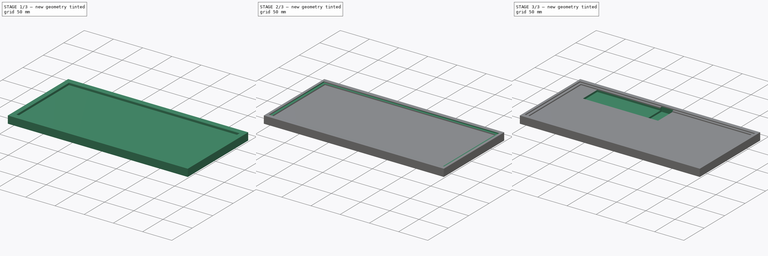
[diagram: build sequence overview — one tinted view per stage of 3, left to right]
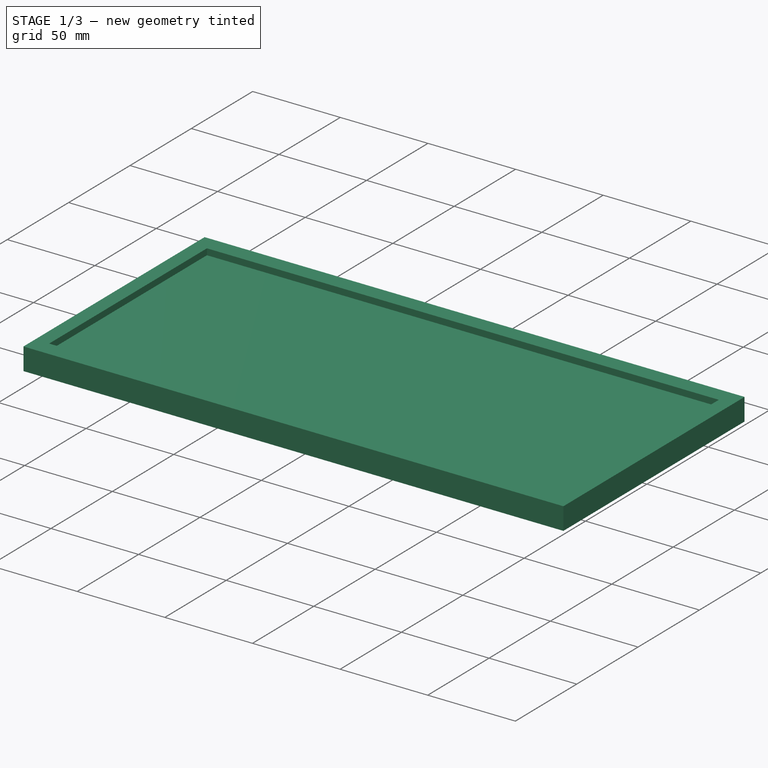
[diagram: stage 1 of 3 — iso view after this stage's code; geometry added in this stage tinted green]
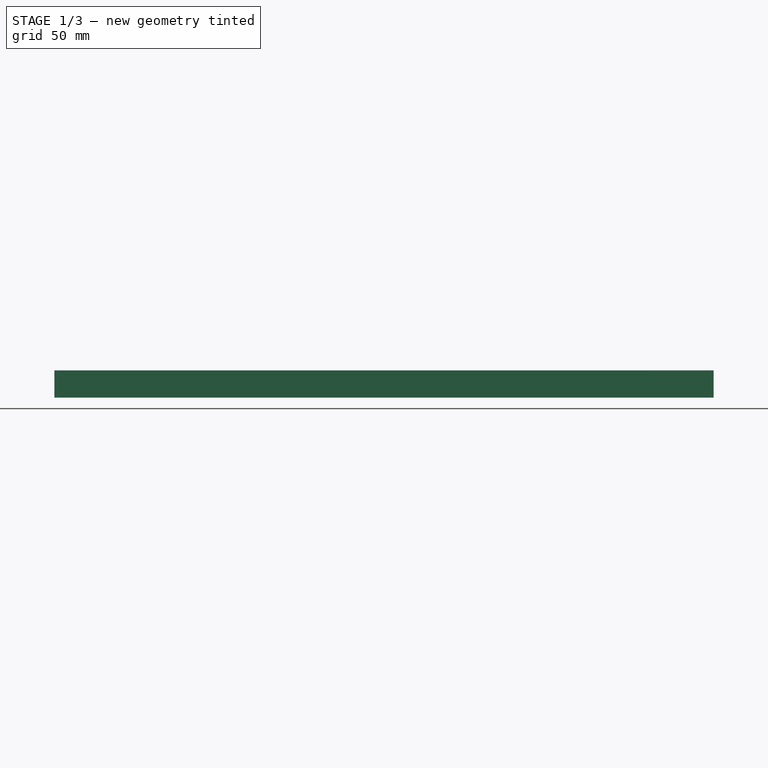
[diagram: stage 1 of 3 — front view after this stage's code; geometry added in this stage tinted green]
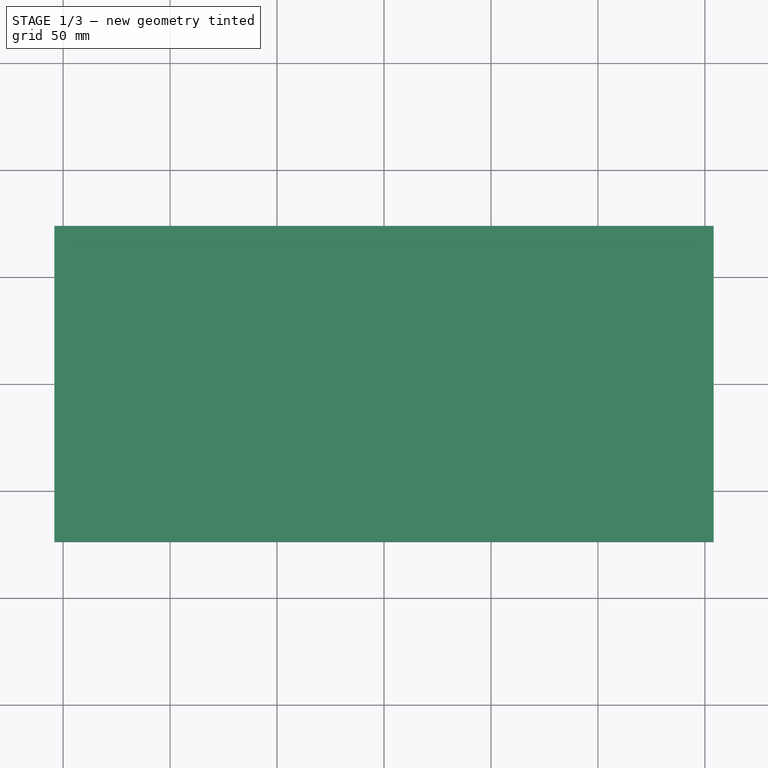
[diagram: stage 1 of 3 — top view after this stage's code; geometry added in this stage tinted green]
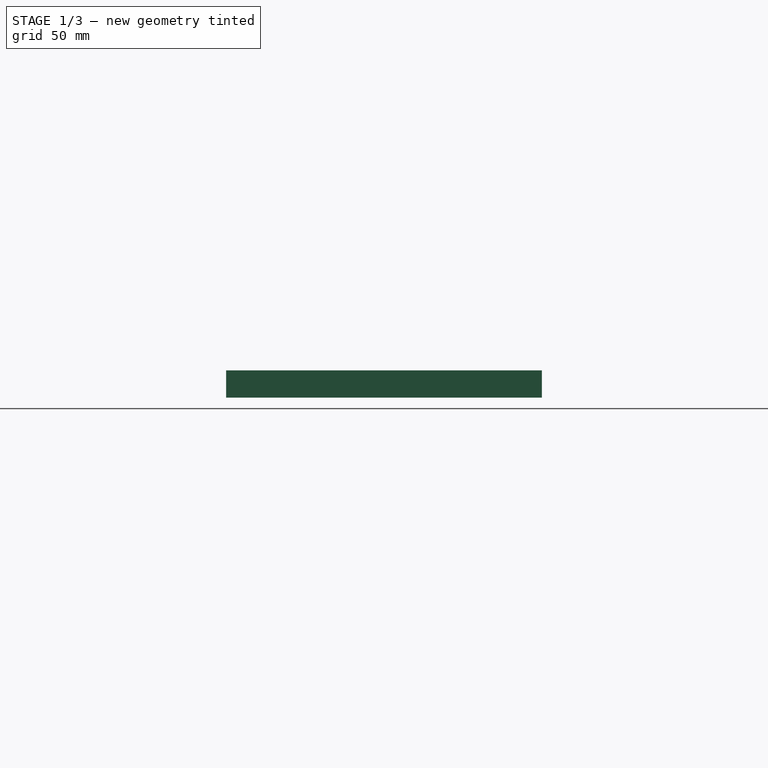
[diagram: stage 1 of 3 — right view after this stage's code; geometry added in this stage tinted green]
FCSTD DOCUMENT  (FreeCAD 0.15R4589 (Git))
Label: case
License: All rights reserved
LicenseURL: http://en.wikipedia.org/wiki/All_rights_reserved
objects: Sketcher::SketchObject×5, PartDesign::Pocket×4, PartDesign::Pad×1
note: 15 computed .brp shape members not serialized (recipe doc carries the construction recipe); baked Part::Feature solids carry a one-line shape summary decoded from their .brp

FEATURE [Sketcher::SketchObject] Sketch001
  sketch-geometry (4):
    g0: LineSegment StartX=-154.051 StartY=73.8187 StartZ=0 EndX=154.051 EndY=73.8187 EndZ=0
    g1: LineSegment StartX=154.051 StartY=73.8187 StartZ=0 EndX=154.051 EndY=-73.8187 EndZ=0
    g2: LineSegment StartX=154.051 StartY=-73.8187 StartZ=0 EndX=-154.051 EndY=-73.8187 EndZ=0
    g3: LineSegment StartX=-154.051 StartY=-73.8187 StartZ=0 EndX=-154.051 EndY=73.8187 EndZ=0
  constraints (12):
    c: Coincident(g0,g1)
    c: Coincident(g1,g2)
    c: Coincident(g2,g3)
    c: Coincident(g3,g0)
    c: Horizontal(g0)
    c: Horizontal(g2)
    c: Vertical(g1)
    c: Vertical(g3)
    c: DistanceX(g0) = 308.102
    c: DistanceX(g-1,g0) = -154.051
    c: DistanceY(g3) = 147.637
    c: DistanceY(g-1,g0) = 73.8187
FEATURE [PartDesign::Pad] Pad
  Length = 12.7
  Length2 = 100
  Sketch = -> Sketch001
  Type = 0
FEATURE [Sketcher::SketchObject] Sketch002  label="interior_pocket"
  Placement = pos=(0,0,12.7) rot=(0,0,1;0rad)
  Support = -> Pad [Face6]
  sketch-geometry (4):
    g0: LineSegment StartX=-146.05 StartY=64.2938 StartZ=0 EndX=146.05 EndY=64.2938 EndZ=0
    g1: LineSegment StartX=146.05 StartY=64.2938 StartZ=0 EndX=146.05 EndY=-64.2938 EndZ=0
    g2: LineSegment StartX=146.05 StartY=-64.2938 StartZ=0 EndX=-146.05 EndY=-64.2938 EndZ=0
    g3: LineSegment StartX=-146.05 StartY=-64.2938 StartZ=0 EndX=-146.05 EndY=64.2938 EndZ=0
  constraints (12):
    c: Coincident(g0,g1)
    c: Coincident(g1,g2)
    c: Coincident(g2,g3)
    c: Coincident(g3,g0)
    c: Horizontal(g0)
    c: Horizontal(g2)
    c: Vertical(g1)
    c: Vertical(g3)
    c: DistanceX(g0) = 292.1
    c: DistanceY(g3) = 128.588
    c: DistanceY(g-1,g0) = 64.2938
    c: DistanceX(g-1,g0) = -146.05
FEATURE [PartDesign::Pocket] Pocket
  Length = 3.556
  Sketch = -> Sketch002
  Type = 0
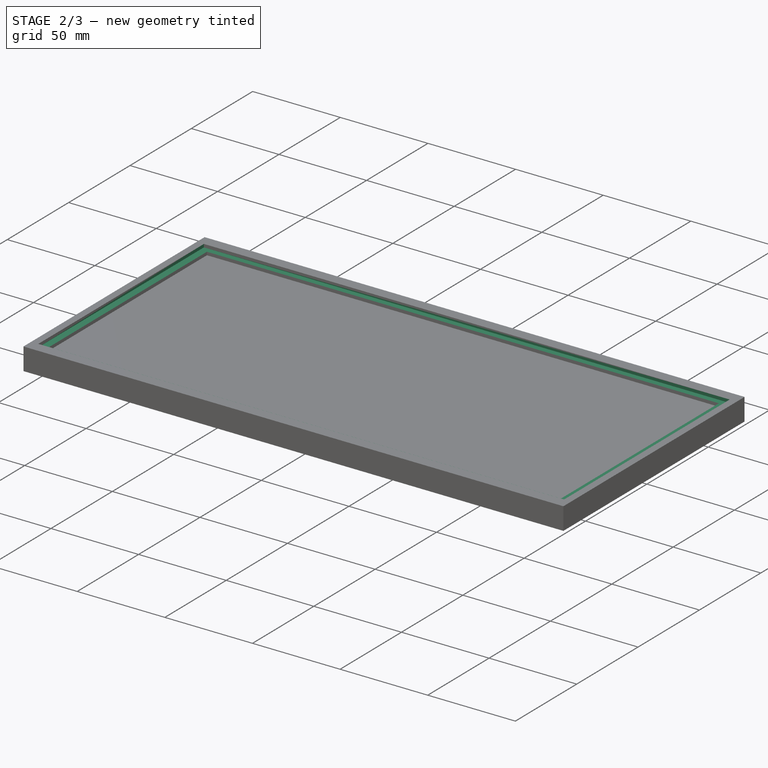
[diagram: stage 2 of 3 — iso view after this stage's code; geometry added in this stage tinted green]
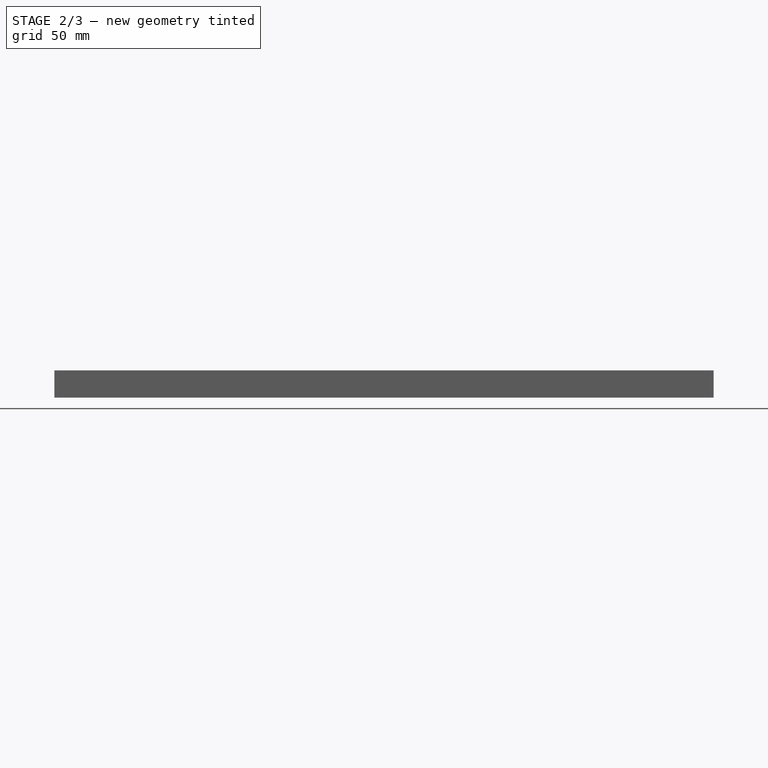
[diagram: stage 2 of 3 — front view after this stage's code; geometry added in this stage tinted green]
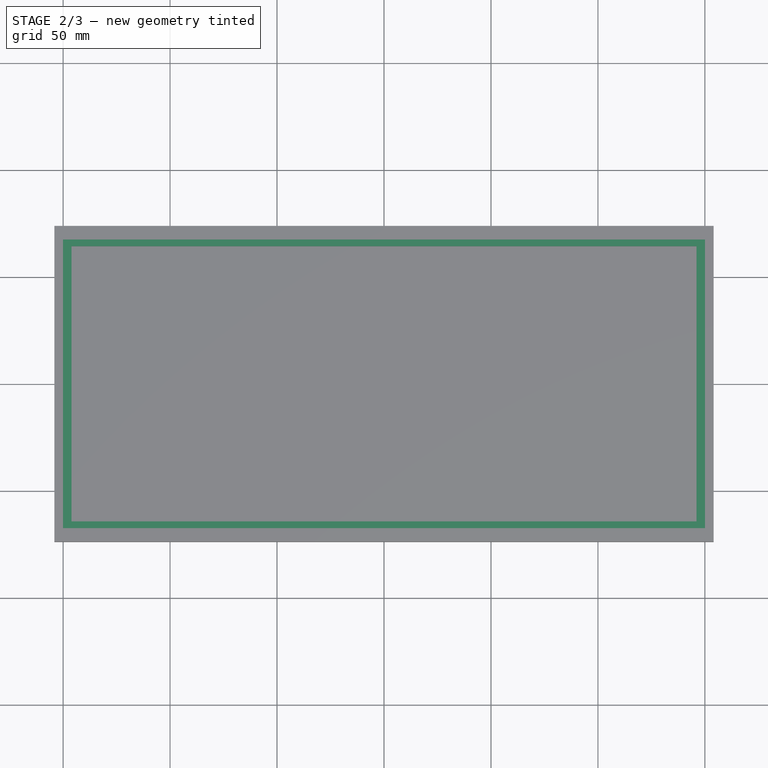
[diagram: stage 2 of 3 — top view after this stage's code; geometry added in this stage tinted green]
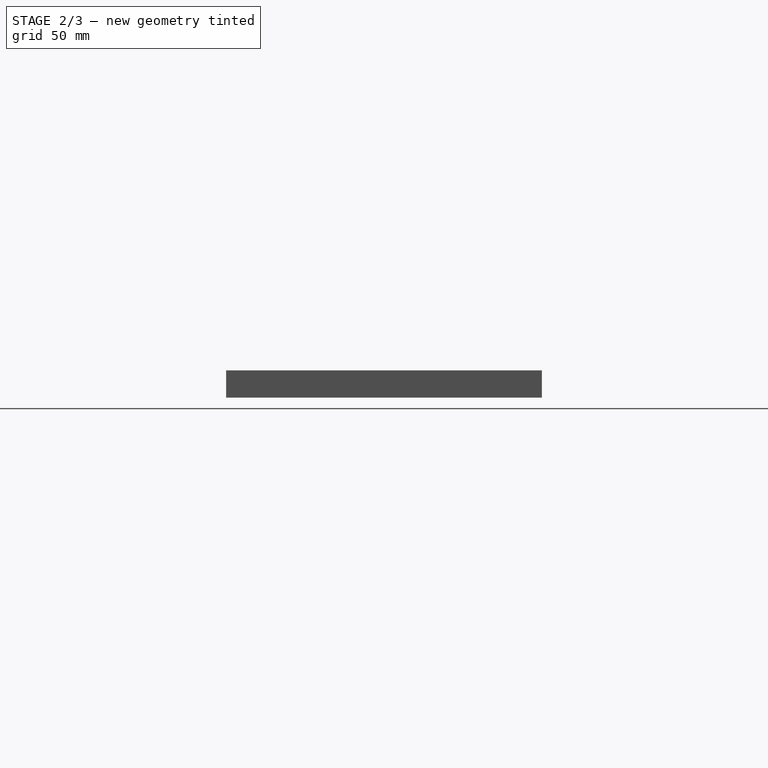
[diagram: stage 2 of 3 — right view after this stage's code; geometry added in this stage tinted green]
FEATURE [Sketcher::SketchObject] Sketch  label="pcb_edge001"
  Placement = pos=(0,0,12.7) rot=(0,0,1;0rad)
  Support = -> Pocket [Face5]
  sketch-geometry (4):
    g0: LineSegment StartX=-150.019 StartY=67.4688 StartZ=0 EndX=150.019 EndY=67.4688 EndZ=0
    g1: LineSegment StartX=150.019 StartY=67.4688 StartZ=0 EndX=150.019 EndY=-67.4688 EndZ=0
    g2: LineSegment StartX=150.019 StartY=-67.4688 StartZ=0 EndX=-150.019 EndY=-67.4688 EndZ=0
    g3: LineSegment StartX=-150.019 StartY=-67.4688 StartZ=0 EndX=-150.019 EndY=67.4688 EndZ=0
  constraints (12):
    c: Coincident(g0,g1)
    c: Coincident(g1,g2)
    c: Coincident(g2,g3)
    c: Coincident(g3,g0)
    c: Horizontal(g0)
    c: Horizontal(g2)
    c: Vertical(g1)
    c: Vertical(g3)
    c: DistanceX(g0) = 300.038
    c: DistanceY(g3) = 134.938
    c: DistanceY(g-1,g0) = 67.4688
    c: DistanceX(g-1,g0) = -150.019
FEATURE [PartDesign::Pocket] Pocket001  label="pcb_edge"
  Length = 1.778
  Sketch = -> Sketch
  Type = 0
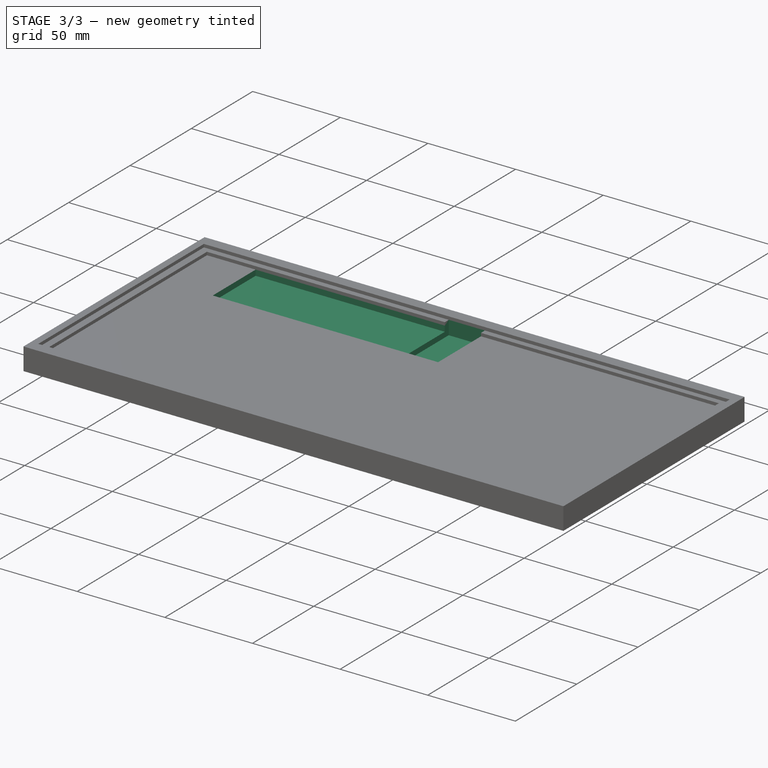
[diagram: stage 3 of 3 — iso view after this stage's code; geometry added in this stage tinted green]
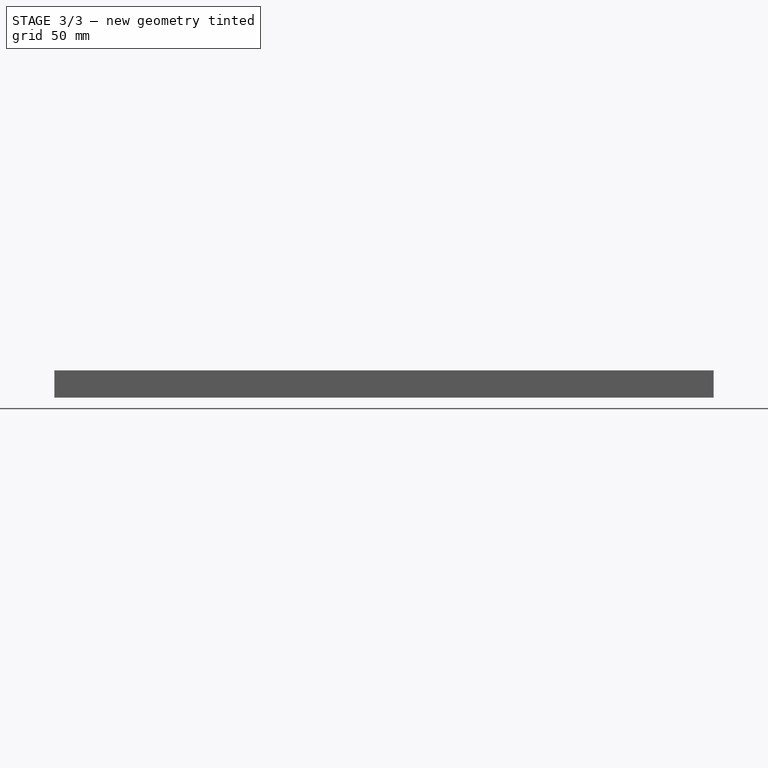
[diagram: stage 3 of 3 — front view after this stage's code; geometry added in this stage tinted green]
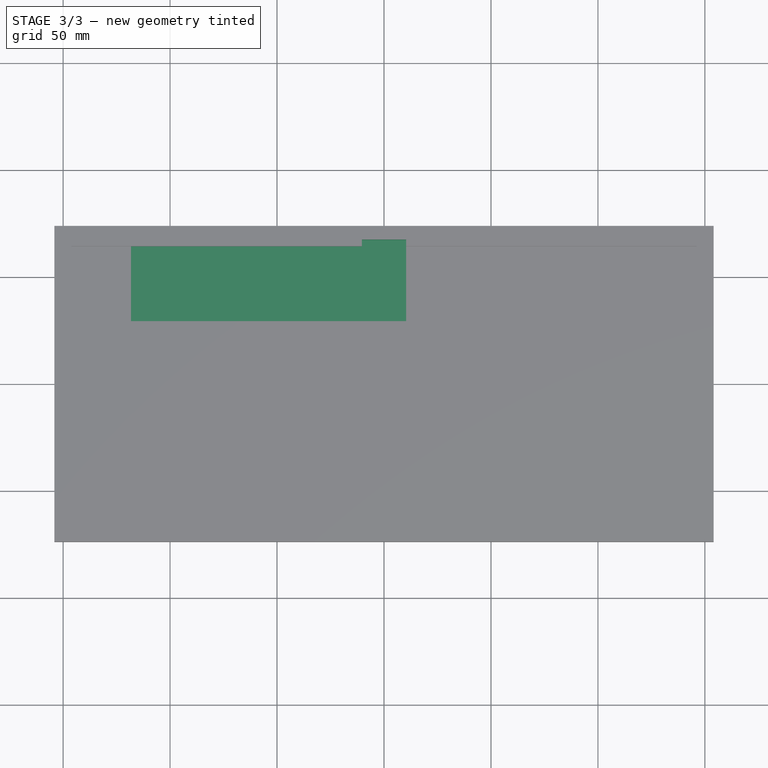
[diagram: stage 3 of 3 — top view after this stage's code; geometry added in this stage tinted green]
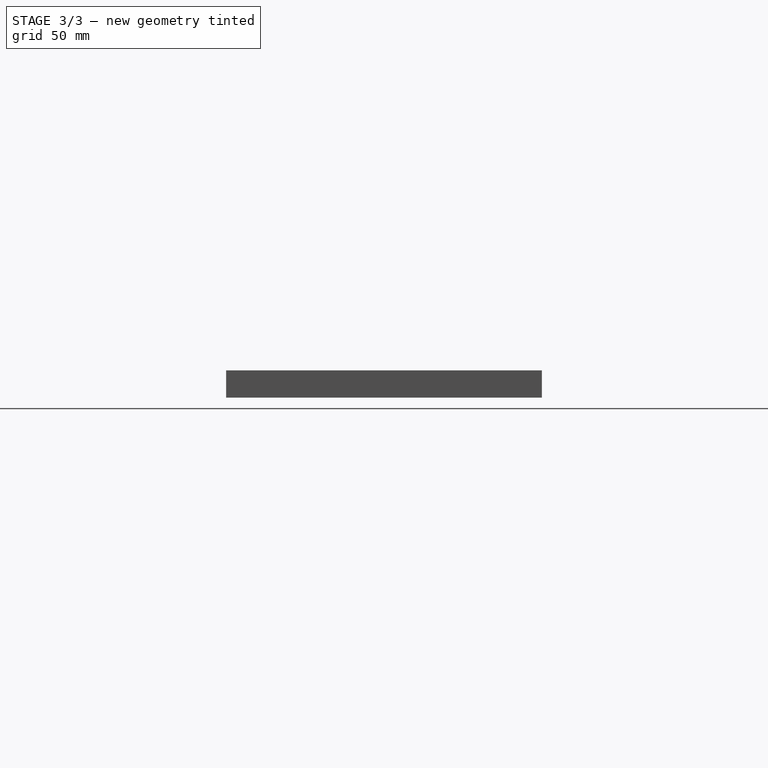
[diagram: stage 3 of 3 — right view after this stage's code; geometry added in this stage tinted green]
FEATURE [Sketcher::SketchObject] Sketch003
  ExternalGeometry = -> [Pocket001]
  Placement = pos=(0,0,10.922) rot=(0,0,1;0rad)
  Support = -> Pocket001 [Face11]
  sketch-geometry (4):
    g0: LineSegment StartX=-10.3187 StartY=67.4688 StartZ=0 EndX=10.3187 EndY=67.4688 EndZ=0
    g1: LineSegment StartX=10.3187 StartY=67.4688 StartZ=0 EndX=10.3187 EndY=29.3687 EndZ=0
    g2: LineSegment StartX=10.3187 StartY=29.3687 StartZ=0 EndX=-10.3187 EndY=29.3687 EndZ=0
    g3: LineSegment StartX=-10.3187 StartY=29.3687 StartZ=0 EndX=-10.3187 EndY=67.4688 EndZ=0
  constraints (12):
    c: Coincident(g0,g1)
    c: Coincident(g1,g2)
    c: Coincident(g2,g3)
    c: Coincident(g3,g0)
    c: Horizontal(g0)
    c: Horizontal(g2)
    c: Vertical(g1)
    c: Vertical(g3)
    c: DistanceX(g2,g-3) = -139.7
    c: DistanceX(g1,g-4) = 139.7
    c: DistanceY(g1) = -38.1
    c: DistanceY(g0,g-5) = 0
FEATURE [PartDesign::Pocket] Pocket002  label="teensy_pocket"
  Length = 7.9375
  Sketch = -> Sketch003
  Type = 0
FEATURE [Sketcher::SketchObject] Sketch004
  ExternalGeometry = -> [Pocket002]
  Placement = pos=(0,0,9.144) rot=(0,0,1;0rad)
  Support = -> Pocket002 [Face21]
  sketch-geometry (4):
    g0: LineSegment StartX=-10.3187 StartY=64.2938 StartZ=0 EndX=-118.269 EndY=64.2938 EndZ=0
    g1: LineSegment StartX=-118.269 StartY=64.2938 StartZ=0 EndX=-118.269 EndY=29.3687 EndZ=0
    g2: LineSegment StartX=-118.269 StartY=29.3687 StartZ=0 EndX=-10.3187 EndY=29.3687 EndZ=0
    g3: LineSegment StartX=-10.3187 StartY=29.3687 StartZ=0 EndX=-10.3187 EndY=64.2938 EndZ=0
  constraints (12):
    c: Coincident(g0,g1)
    c: Coincident(g1,g2)
    c: Coincident(g2,g3)
    c: Coincident(g3,g0)
    c: Horizontal(g0)
    c: Horizontal(g2)
    c: Vertical(g1)
    c: Vertical(g3)
    c: DistanceX(g2,g-3) = 0
    c: DistanceY(g2,g-3) = 0
    c: DistanceY(g0,g-3) = 0
    c: DistanceX(g2) = 107.95
FEATURE [PartDesign::Pocket] Pocket003  label="cable_pocket"
  Length = 3.175
  Sketch = -> Sketch004
  Type = 0
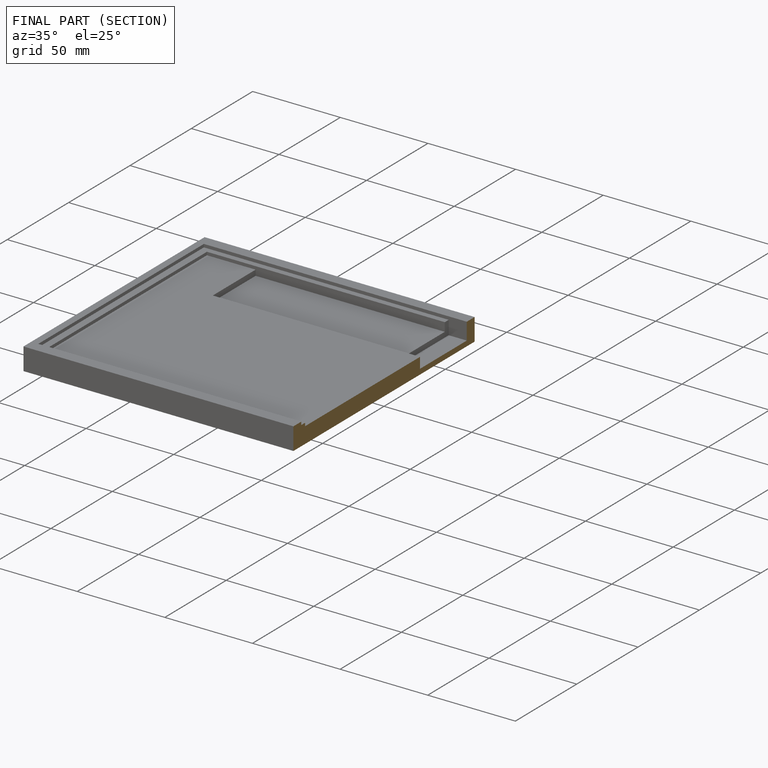
[diagram: finished part — half-section view (interior)]
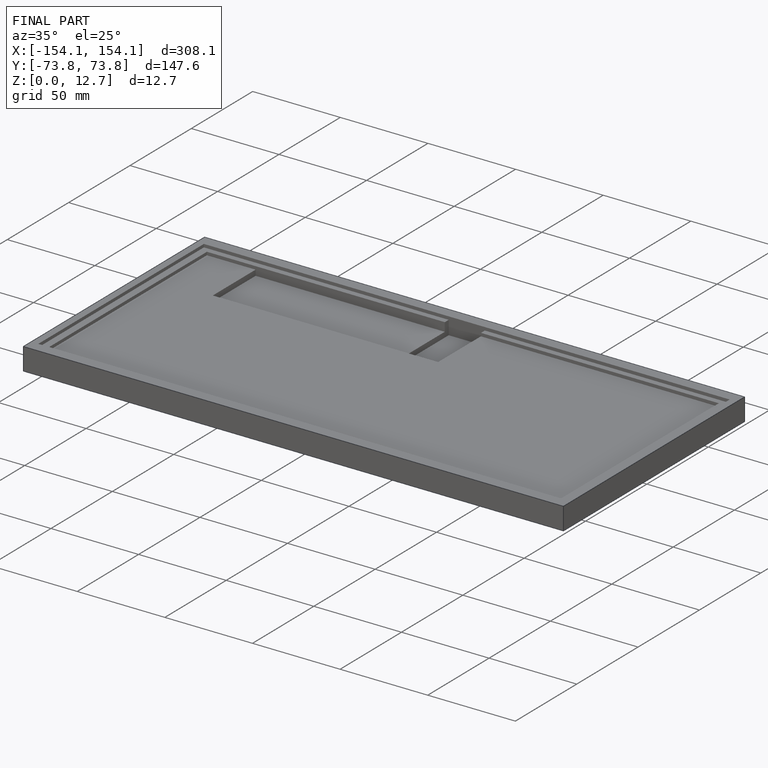
[diagram: finished part — iso view with bounding-box wireframe]
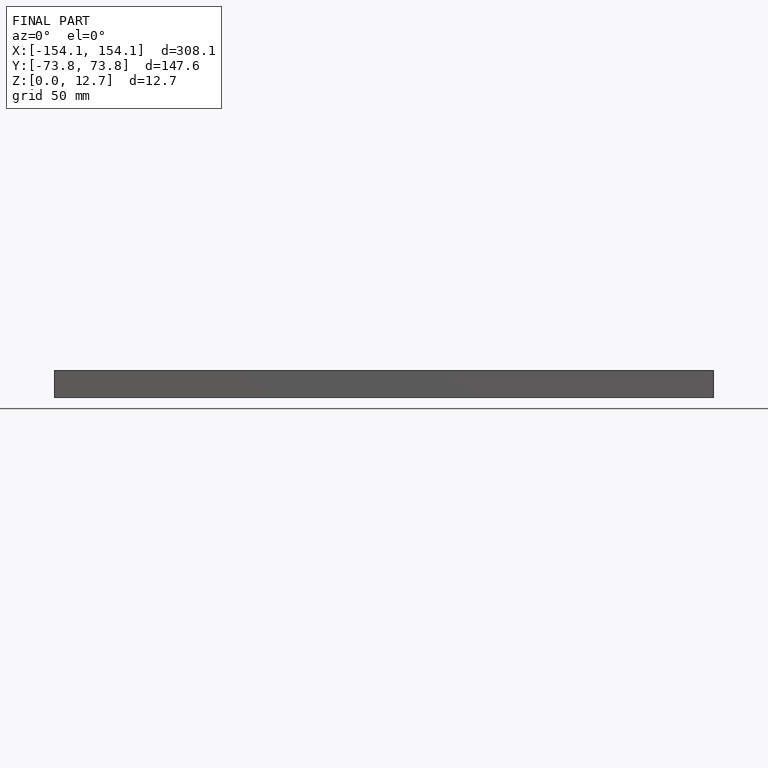
[diagram: finished part — front view with bounding-box wireframe]
